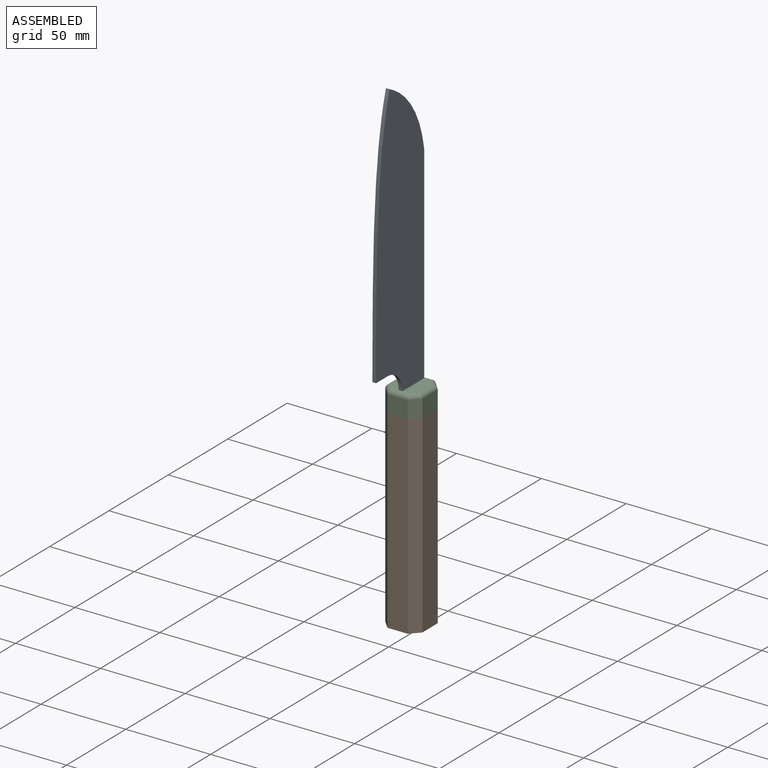
[diagram: assembled view]
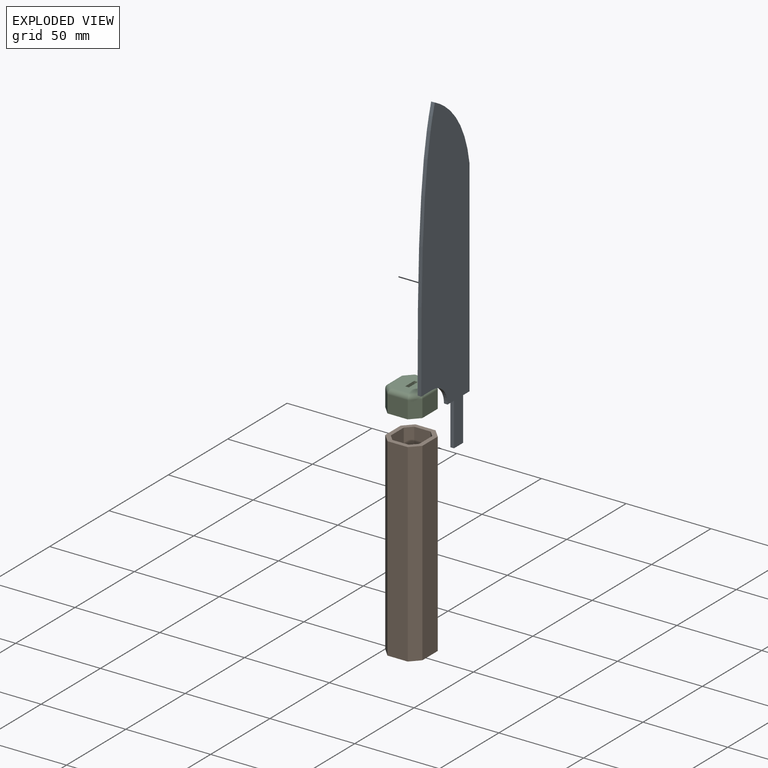
[diagram: exploded view]
GUIDED TOUR — MATED ASSEMBLY (Onshape document 1b7589d8d8c53934936fa82d, AutoMate assembly 1b7589d8d8c53934936fa82d_e93b84520b2219b589fbfa6e_907b7c5e0eccac02307c0e2b_default)

This assembly has 3 components, labeled P0..P2 below (a component is one placed occurrence of a part; the same part can appear more than once), held together by 4 mates. A mate is a constraint between two components; its type names the relative motion it leaves free:
  FASTENED — locks the two components together rigidly (no relative motion),
  PARALLEL — keeps the two listed directions parallel,
  PLANAR — leaves sliding in the plane through the listed point (normal = the listed direction) and rotation about that normal free.
Axis/direction vectors are unit vectors and 'through' points are millimeter coordinates, both in the assembly's world frame.

MATES
  1. PLANAR "Planar 1": P0 <-> P2, direction (-1.000, 0.000, 0.000) through (-158.96, -50.91, 144.14) mm
  2. PARALLEL "Parallel 1": P0 <-> P2, direction (0.000, 0.000, -1.000) through (-157.88, -47.39, 69.85) mm
  3. PLANAR "Planar 2": P2 <-> P1, direction (0.000, 0.000, -1.000) through (-157.88, -40.90, 57.08) mm
  4. FASTENED "Fastened 1": P1 <-> P2, direction (0.685, 0.729, 0.000) through (-166.33, -31.79, 57.08) mm

ASSEMBLY ORDER
  1. P0 — the base component [order verified]
  2. P2 [order verified]
  3. P1 [order verified]
Order-tag legend:
  [order verified] — this step's position reverses a verified removal order: the component was checked to insert without passing through the ones already placed.

Of the 3 components, 1 carries the full construction recipe — the FeatureScript program that regenerates the part's solid from scratch; the rest are supplied as boundary geometry only.
Each toured component is shown spotlighted twice — in the assembled view, then in the exploded view, where a leader line traces a displaced component back to its assembled socket (saturated green if recipe-attached, orange if geometry-only; every other component desaturated gray) — followed by its recipe or geometry summary and the mates that hold it.
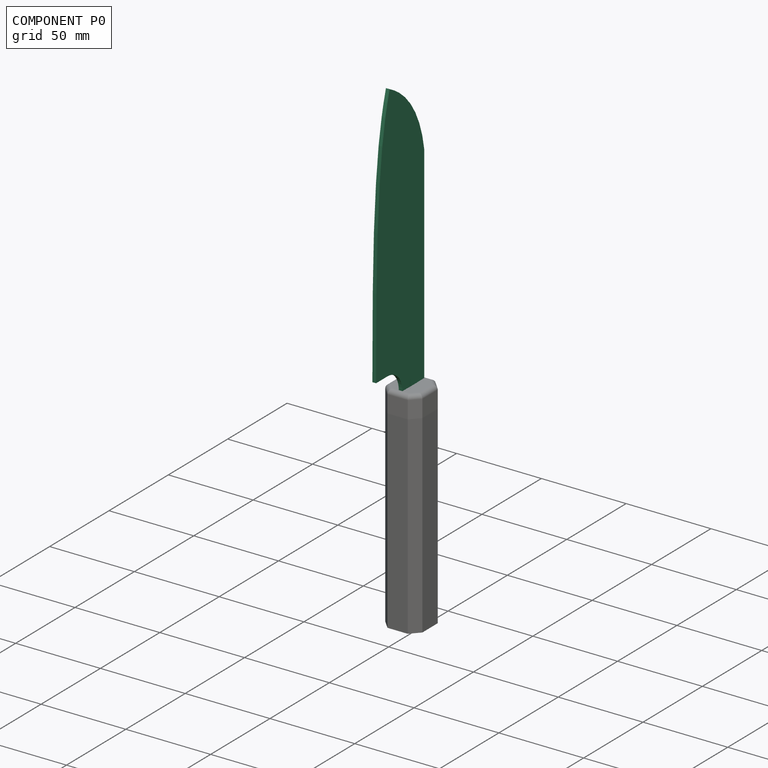
[diagram: component P0 — assembled]
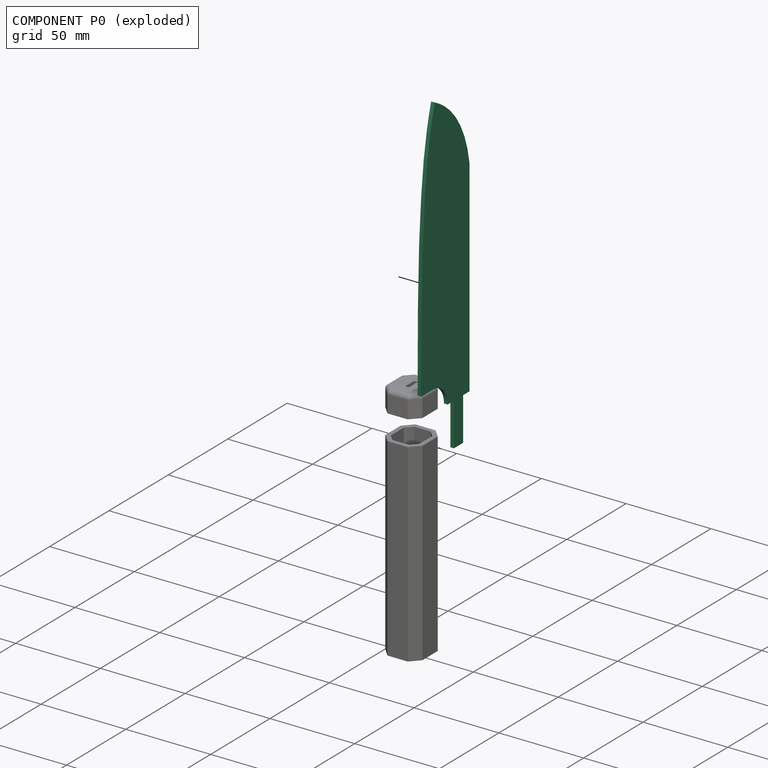
[diagram: component P0 — exploded]
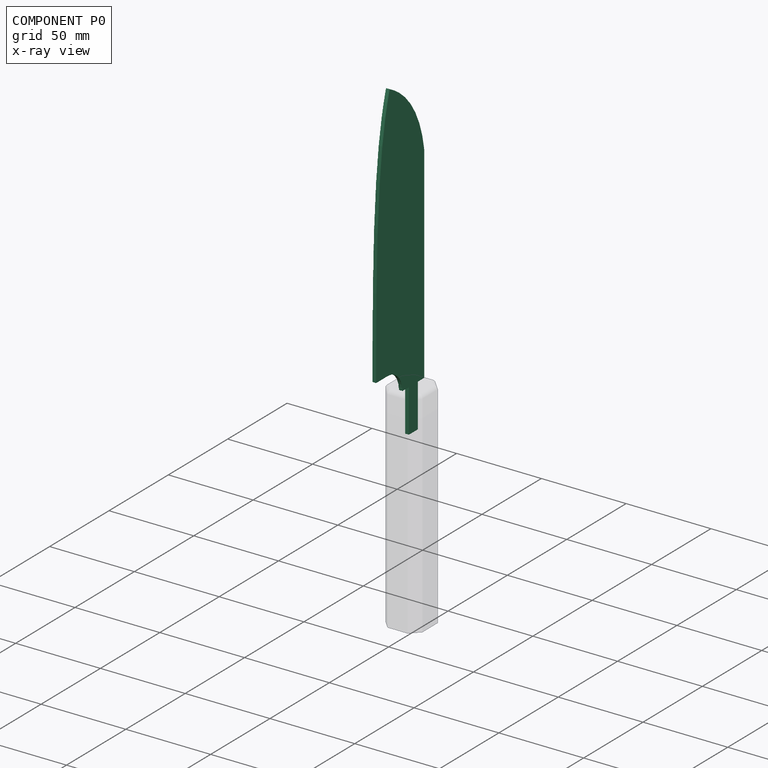
[diagram: component P0 — x-ray view]
COMPONENT P0 — recipe-attached (CADFS 00880578, mesh-verified: the recipe's output STEP matches this component's geometry to below the mesh-comparison resolution (tessellation chordal tolerance ~0.292 mm)).
Held by: PLANAR mate "Planar 1" to P2; PARALLEL mate "Parallel 1" to P2.
Construction recipe (FeatureScript — the CAD program that rebuilds this solid; sketch coordinates are in the units given by the * unit suffixes, e.g. mm):

FeatureScript 1511;
import(path : "onshape/std/geometry.fs", version : "1511.0");
import(path : "onshape/std/common.fs", version : "1511.0");
const mm = millimeter;
const VERTEX = EntityType.VERTEX;
const EDGE = EntityType.EDGE;
const FACE = EntityType.FACE;
const BODY = EntityType.BODY;
function v(x, y){return vector(x, y);}
function OD(order){return orderDisambiguation(order);}
function OSD(set){return originalSetDisambiguation(set);}
function TD(topology){return topologyDisambiguation(topology);}
function TDD(query){return trueDependencyDisambiguation(query);}
function sQuery(a, b, c) {return sketchEntityQuery(a, b, c);}

annotation { "Feature Type Name" : "Feature", "Feature Type Description" : "" }
export const myFeature = defineFeature(function(context is Context, id is Id, definition is map)
    precondition{}
    {
        {
            var Q0;
            Q0=qCreatedBy(makeId("Top.planeOp"),FACE);
            var sketch = newSketch(context, id + "F0", { "sketchPlane" : qUnion([Q0])});
            skLineSegment(sketch, "E0.top", {"start": v(32.73, 20.32) * mm, "end": v(-76.2, 20.32) * mm});
            skLineSegment(sketch, "E0.right", {"start": v(-76.2, -20.32) * mm, "end": v(-76.2, -10.8) * mm});
            skPoint(sketch, "E0.middle", {"position": v(0, 0) * mm});
            skFitSpline(sketch, "E1", {"points": [v(32.73, 20.32) * mm, v(76.2, -8.9) * mm], "startDerivative": vector(49.4, -7.18) * mm, "endDerivative": vector(27.61, -55.77) * mm});
            skFitSpline(sketch, "E2", {"points": [v(-76.2, -20.32) * mm, v(24.5, -17.66) * mm, v(76.2, -8.9) * mm], "startDerivative": vector(251.92, 0) * mm, "endDerivative": vector(115.32, 35.64) * mm});
            skPoint(sketch, "E3.orphan", {"position": v(76.2, 20.32) * mm});
            skPoint(sketch, "E0.left.start.orphan", {"position": v(76.2, -20.32) * mm});
            skLineSegment(sketch, "E4.bottom", {"start": v(-76.2, 20.32) * mm, "end": v(-88.9, 20.32) * mm});
            skLineSegment(sketch, "E4.top", {"start": v(-88.9, 1.9) * mm, "end": v(-88.9, 1.9) * mm});
            skLineSegment(sketch, "E4.right", {"start": v(-88.9, 20.32) * mm, "end": v(-88.9, 14.92) * mm});
            skArc(sketch, "E5.filletArc", {"start": v(-76.2, -10.8) * mm, "mid": v(-79.92, -1.81) * mm, "end": v(-88.9, 1.9) * mm});
            skLineSegment(sketch, "E6.bottom", {"start": v(-114.3, 14.92) * mm, "end": v(-88.9, 14.92) * mm});
            skLineSegment(sketch, "E6.top", {"start": v(-114.3, 7.3) * mm, "end": v(-88.9, 7.3) * mm});
            skLineSegment(sketch, "E6.left", {"start": v(-114.3, 14.92) * mm, "end": v(-114.3, 7.3) * mm});
            skPoint(sketch, "E6.middle", {"position": v(-88.9, 11.11) * mm});
            skPoint(sketch, "E6.right.start.orphan", {"position": v(-63.5, 14.92) * mm});
            skLineSegment(sketch, "E7.trimOffspring", {"start": v(-88.9, 7.3) * mm, "end": v(-88.9, 1.9) * mm});
            skPoint(sketch, "E8.orphan", {"position": v(-63.5, 7.3) * mm});
            skSolve(sketch);
        }
        {
            var Q0;
            Q0 = qSketchRegion(id + "F0", true);
            extrude(context, id + "F1", {"entities" : qUnion([Q0]), "depth" : 2.16 * mm, "offsetDistance" : 25.4 * mm});
        }
    });
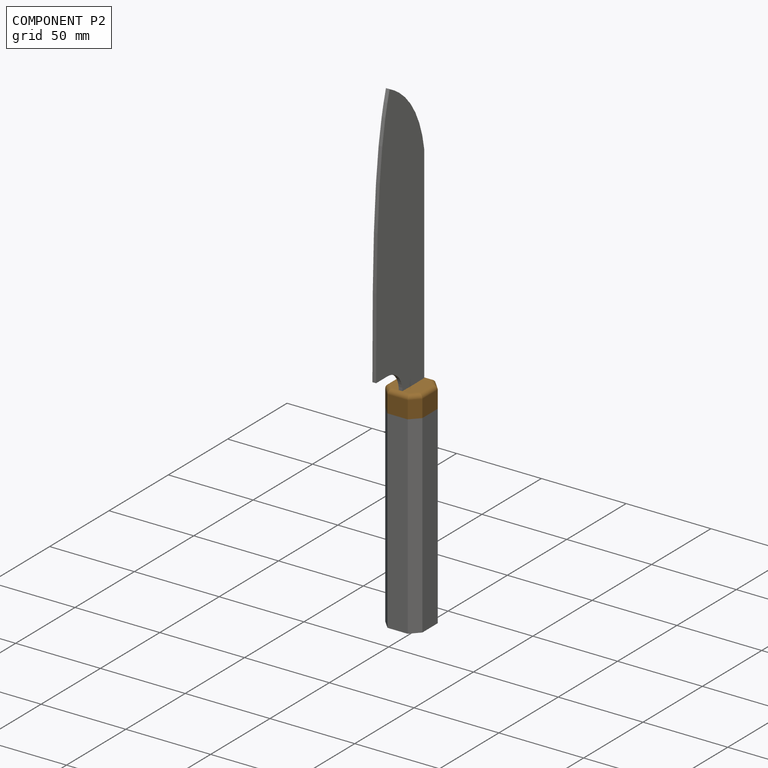
[diagram: component P2 — assembled]
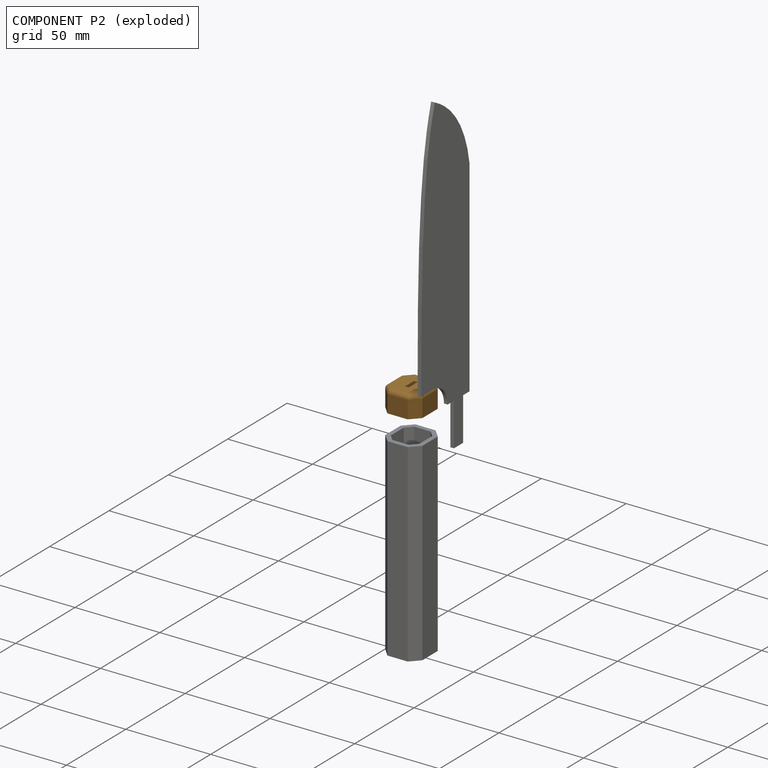
[diagram: component P2 — exploded]
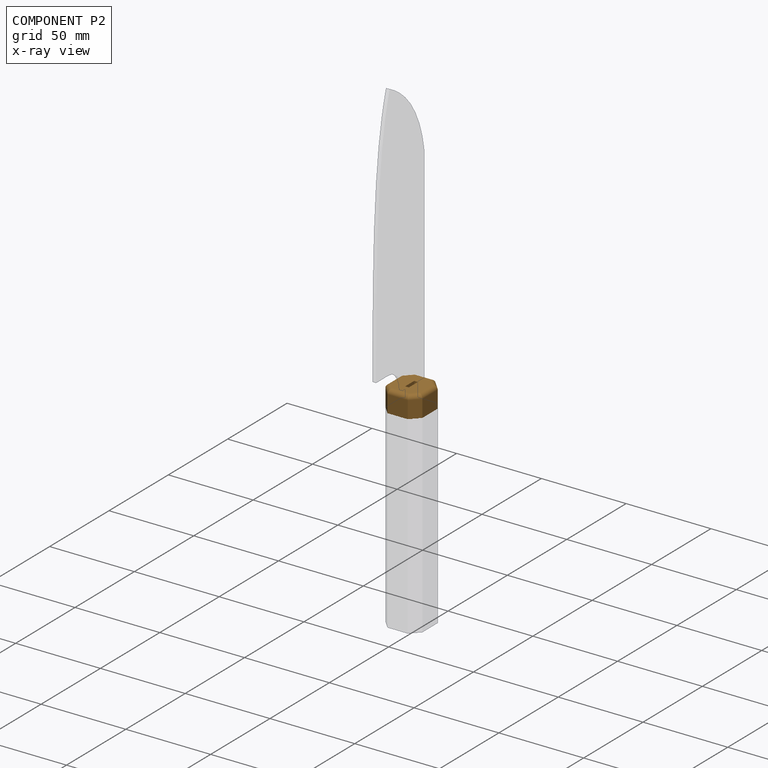
[diagram: component P2 — x-ray view]
COMPONENT P2 — geometry summary (no construction recipe available for this part):
  bounding box: 23.5 x 21.8 x 12.7 mm
  B-rep topology: 1 solid, 36 faces, 176 edges
  volume: 3606 mm^3 (55% of its bounding box)
  symmetry: 2-fold rotationally symmetric about the z axis; mirror-symmetric across its x mid-plane, y mid-plane
Held by: PLANAR mate "Planar 1" to P0; PARALLEL mate "Parallel 1" to P0; PLANAR mate "Planar 2" to P1; FASTENED mate "Fastened 1" to P1.
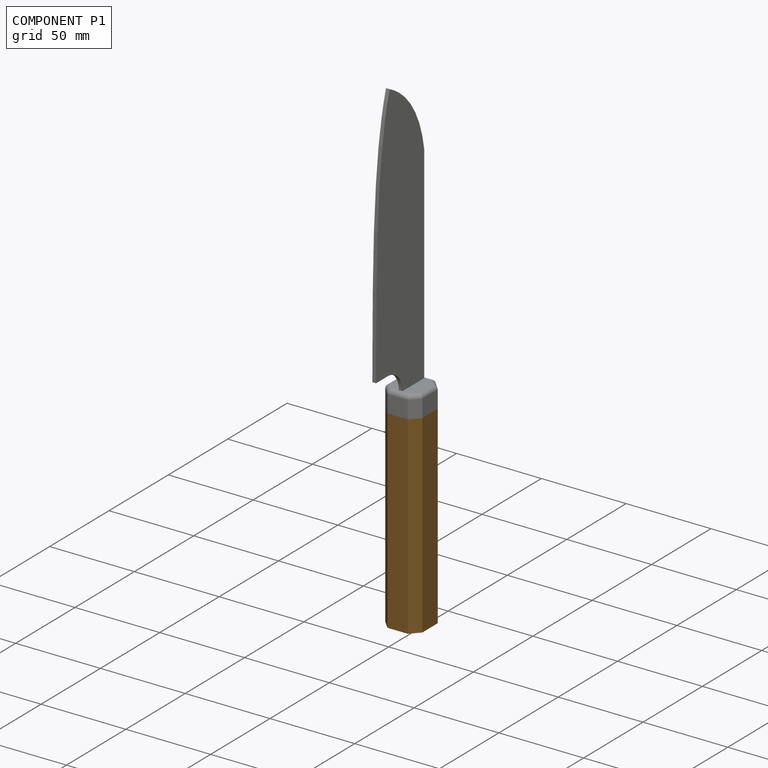
[diagram: component P1 — assembled]
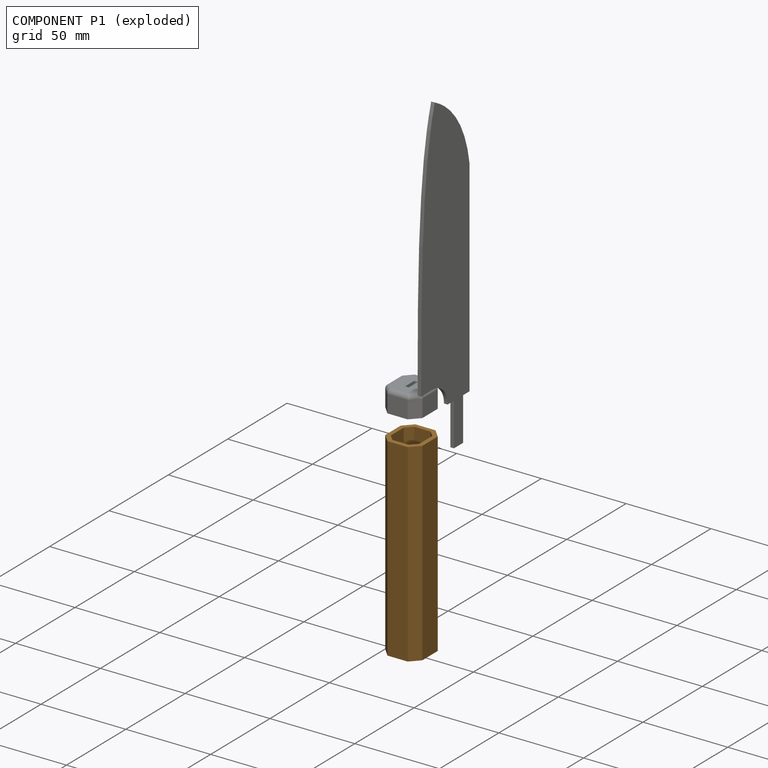
[diagram: component P1 — exploded]
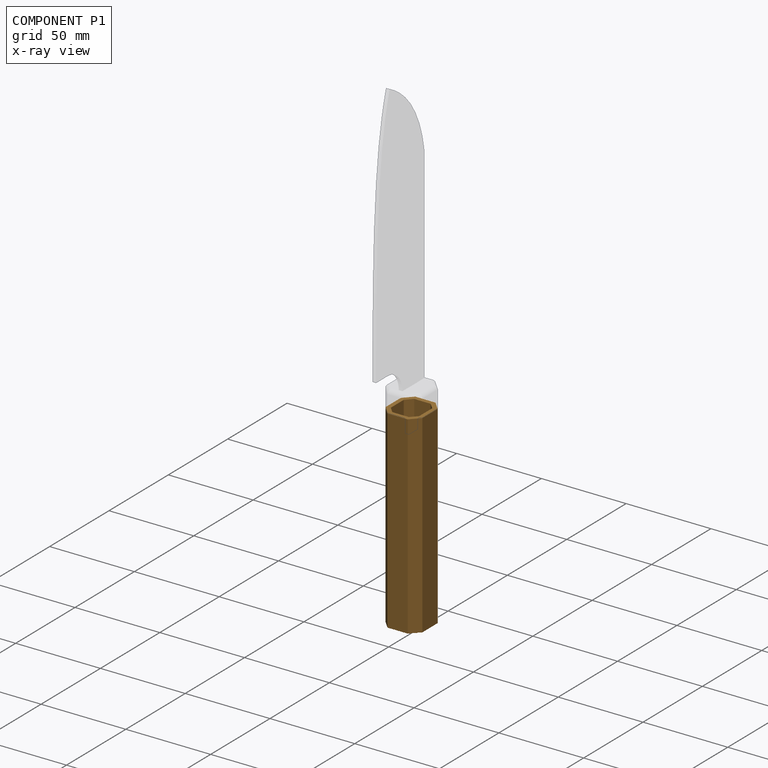
[diagram: component P1 — x-ray view]
COMPONENT P1 — geometry summary (no construction recipe available for this part):
  bounding box: 114.3 x 23.5 x 21.8 mm
  B-rep topology: 1 solid, 18 faces, 96 edges
  volume: 20408 mm^3 (35% of its bounding box)
  symmetry: 2-fold rotationally symmetric about the x axis; 2-fold rotationally symmetric about the y axis; 2-fold rotationally symmetric about the z axis; mirror-symmetric across its x mid-plane, y mid-plane, z mid-plane
Held by: PLANAR mate "Planar 2" to P2; FASTENED mate "Fastened 1" to P2.
PROVENANCE & LICENSES
Assembly (occurrences, transforms, mates, per-part STEP geometry): AutoMate dataset, Zenodo record 7776208, CC0.
Construction recipes: CADFS (HuggingFace VladPyatov/CADFS, CC-BY-4.0, layered over the ABC dataset), FeatureScript reconstruction programs keyed by ABC model id.
Join: ABC meta listings map ABC model id -> Onshape documentId; within a shared document, parts are matched by geometric signature (bounding-box dims + volume at 0.1% relative tolerance, exact B-rep face/solid counts).
Verification: 1 of this assembly's 3 components carries a recipe attachment, and every attachment is mesh-verified: the CADFS STEP and the AutoMate member STEP were compared as meshes in their shared local frame (symmetric sampled-point-to-mesh distance); worst across the 1 attachment: below the mesh-comparison resolution (tessellation chordal tolerance ~0.292 mm) on a 195 mm part.
Renders: orthographic iso camera (az 35 / el 25); the floor grid conveys scale (grid pitch printed in each image; no ruler). In the exploded view each component is displaced by its stored offset vector: the offsets alone carry the explosion direction (mate normal/axis signs are not orientation cues and do not encode it), and separation distances are assigned per mate-chain, not proportionally to assembly-order depth.
